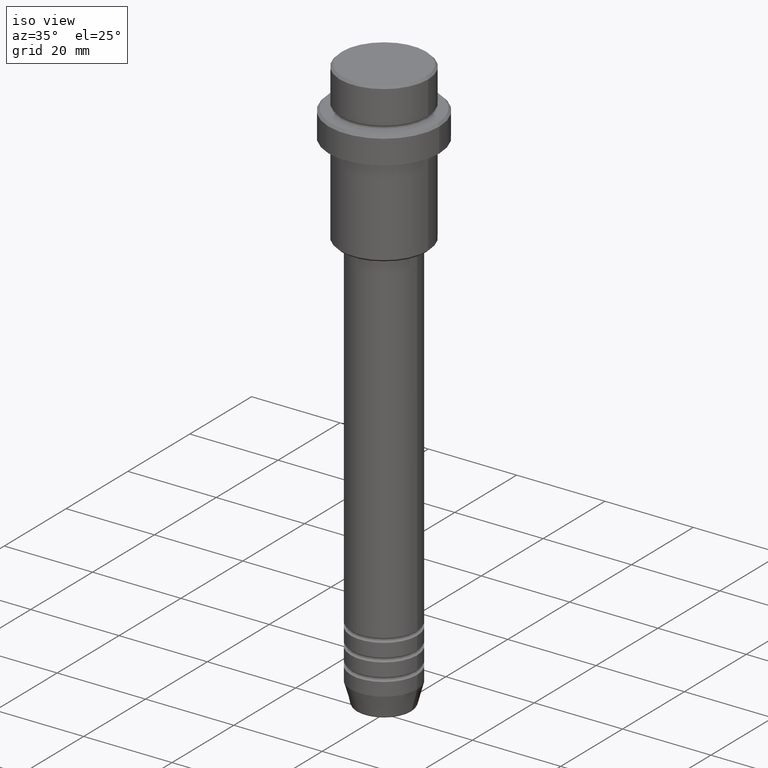
[diagram: clean part render]
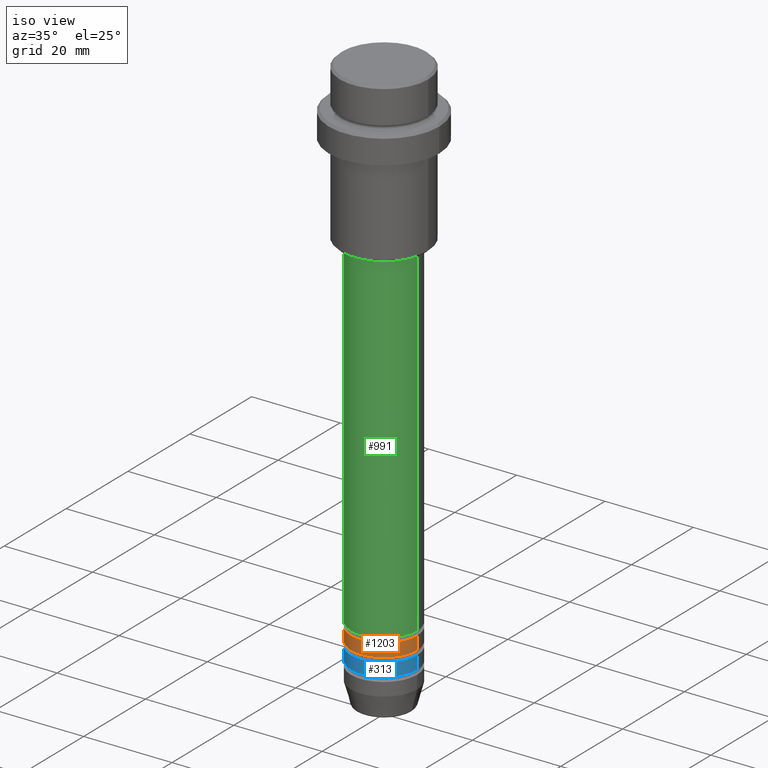
[diagram: same view with three faces highlighted in distinct colors, each labeled with its STEP entity id]
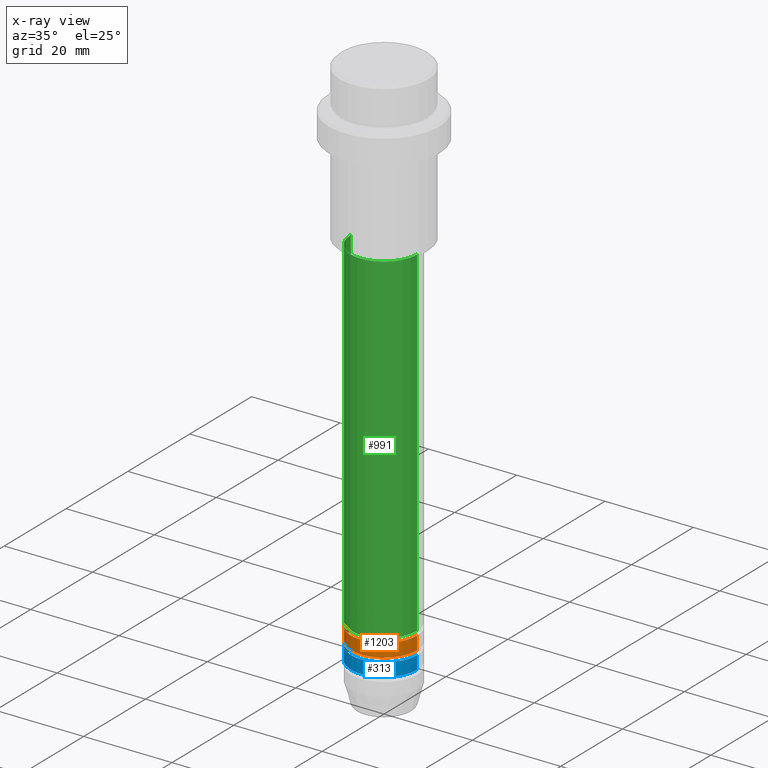
[diagram: x-ray of the same camera — body ghosted, the three highlighted faces saturated]
A machine part, iso view with three faces highlighted in distinct colors.
The next image is the same camera in x-ray (body ghosted, the three faces saturated) — at least one of them is partly hidden behind the body in this view.
Their STEP definitions:

[orange] entity #1203 — the highlighted cylindrical surface (partial cylindrical patch) has radius 7.5 mm, axis along (-0, -0, 1).
#65 = EDGE_CURVE ( 'NONE', #1031, #251, #719, .T. ) ;
#85 = CARTESIAN_POINT ( 'NONE',  ( 7.500000000000000000, 0.000000000000000000, -114.9999999999998863 ) ) ;
#112 = CARTESIAN_POINT ( 'NONE',  ( 7.500000000000000000, 0.000000000000000000, 0.000000000000000000 ) ) ;
#158 = DIRECTION ( 'NONE',  ( -0.000000000000000000, -0.000000000000000000, 1.000000000000000000 ) ) ;
#212 = DIRECTION ( 'NONE',  ( 1.000000000000000000, 0.000000000000000000, 0.000000000000000000 ) ) ;
#217 = EDGE_LOOP ( 'NONE', ( #484, #476, #322, #350 ) ) ;
#219 = DIRECTION ( 'NONE',  ( -0.000000000000000000, -0.000000000000000000, 1.000000000000000000 ) ) ;
#224 = CARTESIAN_POINT ( 'NONE',  ( -7.500000000000000000, 9.184850993605147944E-16, -117.9999999999998863 ) ) ;
#251 = VERTEX_POINT ( 'NONE', #518 ) ;
#279 = EDGE_CURVE ( 'NONE', #251, #1358, #630, .T. ) ;
#292 = EDGE_CURVE ( 'NONE', #1031, #845, #837, .T. ) ;
#305 = AXIS2_PLACEMENT_3D ( 'NONE', #542, #352, #212 ) ;
#322 = ORIENTED_EDGE ( 'NONE', *, *, #364, .T. ) ;
#350 = ORIENTED_EDGE ( 'NONE', *, *, #279, .F. ) ;
#352 = DIRECTION ( 'NONE',  ( -0.000000000000000000, -0.000000000000000000, 1.000000000000000000 ) ) ;
#354 = VECTOR ( 'NONE', #830, 1000.000000000000000 ) ;
#364 = EDGE_CURVE ( 'NONE', #845, #1358, #1106, .T. ) ;
#365 = CARTESIAN_POINT ( 'NONE',  ( -7.500000000000000000, 9.184850993605147944E-16, 0.000000000000000000 ) ) ;
#377 = FACE_OUTER_BOUND ( 'NONE', #217, .T. ) ;
#476 = ORIENTED_EDGE ( 'NONE', *, *, #292, .T. ) ;
#484 = ORIENTED_EDGE ( 'NONE', *, *, #65, .F. ) ;
#518 = CARTESIAN_POINT ( 'NONE',  ( -7.500000000000000000, 9.184850993605147944E-16, -114.9999999999998863 ) ) ;
#542 = CARTESIAN_POINT ( 'NONE',  ( 0.000000000000000000, 0.000000000000000000, -114.9999999999998863 ) ) ;
#552 = DIRECTION ( 'NONE',  ( 1.000000000000000000, 0.000000000000000000, 0.000000000000000000 ) ) ;
#591 = CARTESIAN_POINT ( 'NONE',  ( 0.000000000000000000, 0.000000000000000000, 0.000000000000000000 ) ) ;
#630 = CIRCLE ( 'NONE', #305, 7.500000000000000000 ) ;
#652 = CARTESIAN_POINT ( 'NONE',  ( 0.000000000000000000, 0.000000000000000000, -117.9999999999998863 ) ) ;
#703 = AXIS2_PLACEMENT_3D ( 'NONE', #591, #158, #1150 ) ;
#719 = LINE ( 'NONE', #365, #354 ) ;
#777 = DIRECTION ( 'NONE',  ( -0.000000000000000000, -0.000000000000000000, 1.000000000000000000 ) ) ;
#803 = CYLINDRICAL_SURFACE ( 'NONE', #703, 7.500000000000000000 ) ;
#830 = DIRECTION ( 'NONE',  ( -0.000000000000000000, -0.000000000000000000, 1.000000000000000000 ) ) ;
#837 = CIRCLE ( 'NONE', #1215, 7.500000000000000000 ) ;
#845 = VERTEX_POINT ( 'NONE', #978 ) ;
#978 = CARTESIAN_POINT ( 'NONE',  ( 7.500000000000000000, 0.000000000000000000, -117.9999999999998863 ) ) ;
#1031 = VERTEX_POINT ( 'NONE', #224 ) ;
#1106 = LINE ( 'NONE', #112, #1194 ) ;
#1150 = DIRECTION ( 'NONE',  ( 1.000000000000000000, 0.000000000000000000, 0.000000000000000000 ) ) ;
#1194 = VECTOR ( 'NONE', #777, 1000.000000000000000 ) ;
#1203 = ADVANCED_FACE ( 'NONE', ( #377 ), #803, .T. ) ;
#1215 = AXIS2_PLACEMENT_3D ( 'NONE', #652, #219, #552 ) ;
#1358 = VERTEX_POINT ( 'NONE', #85 ) ;

[blue] entity #313 — the highlighted cylindrical surface (partial cylindrical patch) has radius 7.5 mm, axis along (-0, -0, 1).
#129 = CARTESIAN_POINT ( 'NONE',  ( -7.500000000000000000, 9.184850993605147944E-16, 0.000000000000000000 ) ) ;
#231 = EDGE_LOOP ( 'NONE', ( #601, #435, #348, #342 ) ) ;
#257 = VERTEX_POINT ( 'NONE', #444 ) ;
#265 = LINE ( 'NONE', #129, #446 ) ;
#299 = CARTESIAN_POINT ( 'NONE',  ( -7.500000000000000000, 9.184850993605147944E-16, -121.9999999999998579 ) ) ;
#306 = EDGE_CURVE ( 'NONE', #257, #1045, #1104, .T. ) ;
#313 = ADVANCED_FACE ( 'NONE', ( #1315 ), #327, .T. ) ;
#327 = CYLINDRICAL_SURFACE ( 'NONE', #1260, 7.500000000000000000 ) ;
#342 = ORIENTED_EDGE ( 'NONE', *, *, #306, .F. ) ;
#346 = DIRECTION ( 'NONE',  ( -0.000000000000000000, -0.000000000000000000, 1.000000000000000000 ) ) ;
#348 = ORIENTED_EDGE ( 'NONE', *, *, #757, .T. ) ;
#355 = CARTESIAN_POINT ( 'NONE',  ( 7.500000000000000000, 0.000000000000000000, -118.9999999999998863 ) ) ;
#356 = AXIS2_PLACEMENT_3D ( 'NONE', #774, #884, #681 ) ;
#358 = CIRCLE ( 'NONE', #1395, 7.500000000000000000 ) ;
#435 = ORIENTED_EDGE ( 'NONE', *, *, #900, .T. ) ;
#444 = CARTESIAN_POINT ( 'NONE',  ( -7.500000000000000000, 9.184850993605147944E-16, -118.9999999999998863 ) ) ;
#446 = VECTOR ( 'NONE', #714, 1000.000000000000000 ) ;
#483 = LINE ( 'NONE', #754, #1416 ) ;
#534 = EDGE_CURVE ( 'NONE', #574, #257, #265, .T. ) ;
#574 = VERTEX_POINT ( 'NONE', #299 ) ;
#601 = ORIENTED_EDGE ( 'NONE', *, *, #534, .F. ) ;
#602 = DIRECTION ( 'NONE',  ( -0.000000000000000000, -0.000000000000000000, 1.000000000000000000 ) ) ;
#681 = DIRECTION ( 'NONE',  ( 1.000000000000000000, 0.000000000000000000, 0.000000000000000000 ) ) ;
#714 = DIRECTION ( 'NONE',  ( -0.000000000000000000, -0.000000000000000000, 1.000000000000000000 ) ) ;
#754 = CARTESIAN_POINT ( 'NONE',  ( 7.500000000000000000, 0.000000000000000000, 0.000000000000000000 ) ) ;
#757 = EDGE_CURVE ( 'NONE', #1369, #1045, #483, .T. ) ;
#766 = CARTESIAN_POINT ( 'NONE',  ( 0.000000000000000000, 0.000000000000000000, 0.000000000000000000 ) ) ;
#774 = CARTESIAN_POINT ( 'NONE',  ( 0.000000000000000000, 0.000000000000000000, -118.9999999999998863 ) ) ;
#862 = DIRECTION ( 'NONE',  ( -0.000000000000000000, -0.000000000000000000, 1.000000000000000000 ) ) ;
#884 = DIRECTION ( 'NONE',  ( -0.000000000000000000, -0.000000000000000000, 1.000000000000000000 ) ) ;
#900 = EDGE_CURVE ( 'NONE', #574, #1369, #358, .T. ) ;
#958 = CARTESIAN_POINT ( 'NONE',  ( 7.500000000000000000, 0.000000000000000000, -121.9999999999998579 ) ) ;
#1027 = CARTESIAN_POINT ( 'NONE',  ( 0.000000000000000000, 0.000000000000000000, -121.9999999999998579 ) ) ;
#1045 = VERTEX_POINT ( 'NONE', #355 ) ;
#1088 = DIRECTION ( 'NONE',  ( 1.000000000000000000, 0.000000000000000000, 0.000000000000000000 ) ) ;
#1104 = CIRCLE ( 'NONE', #356, 7.500000000000000000 ) ;
#1145 = DIRECTION ( 'NONE',  ( 1.000000000000000000, 0.000000000000000000, 0.000000000000000000 ) ) ;
#1260 = AXIS2_PLACEMENT_3D ( 'NONE', #766, #346, #1088 ) ;
#1315 = FACE_OUTER_BOUND ( 'NONE', #231, .T. ) ;
#1369 = VERTEX_POINT ( 'NONE', #958 ) ;
#1395 = AXIS2_PLACEMENT_3D ( 'NONE', #1027, #602, #1145 ) ;
#1416 = VECTOR ( 'NONE', #862, 1000.000000000000000 ) ;

[green] entity #991 — the highlighted cylindrical surface (partial cylindrical patch) has radius 7.5 mm, axis along (-0, -0, 1).
#90 = CARTESIAN_POINT ( 'NONE',  ( -7.500000000000000000, 9.184850993605147944E-16, -113.9999999999998863 ) ) ;
#110 = VERTEX_POINT ( 'NONE', #90 ) ;
#152 = AXIS2_PLACEMENT_3D ( 'NONE', #833, #256, #734 ) ;
#179 = VERTEX_POINT ( 'NONE', #202 ) ;
#202 = CARTESIAN_POINT ( 'NONE',  ( 7.500000000000000000, 0.000000000000000000, -36.99999999999997158 ) ) ;
#227 = VERTEX_POINT ( 'NONE', #835 ) ;
#256 = DIRECTION ( 'NONE',  ( -0.000000000000000000, -0.000000000000000000, 1.000000000000000000 ) ) ;
#285 = VECTOR ( 'NONE', #401, 1000.000000000000000 ) ;
#334 = EDGE_CURVE ( 'NONE', #1219, #179, #728, .T. ) ;
#353 = EDGE_CURVE ( 'NONE', #227, #179, #665, .T. ) ;
#401 = DIRECTION ( 'NONE',  ( -0.000000000000000000, -0.000000000000000000, 1.000000000000000000 ) ) ;
#415 = CARTESIAN_POINT ( 'NONE',  ( 0.000000000000000000, 0.000000000000000000, 0.000000000000000000 ) ) ;
#632 = LINE ( 'NONE', #1053, #285 ) ;
#646 = EDGE_CURVE ( 'NONE', #110, #1219, #632, .T. ) ;
#665 = LINE ( 'NONE', #1098, #1324 ) ;
#694 = ORIENTED_EDGE ( 'NONE', *, *, #353, .T. ) ;
#728 = CIRCLE ( 'NONE', #1009, 7.500000000000000000 ) ;
#734 = DIRECTION ( 'NONE',  ( 1.000000000000000000, 0.000000000000000000, 0.000000000000000000 ) ) ;
#768 = CIRCLE ( 'NONE', #152, 7.500000000000000000 ) ;
#810 = CARTESIAN_POINT ( 'NONE',  ( -7.500000000000000000, 9.184850993605147944E-16, -36.99999999999997158 ) ) ;
#833 = CARTESIAN_POINT ( 'NONE',  ( 0.000000000000000000, 0.000000000000000000, -113.9999999999998863 ) ) ;
#835 = CARTESIAN_POINT ( 'NONE',  ( 7.500000000000000000, 0.000000000000000000, -113.9999999999998863 ) ) ;
#846 = DIRECTION ( 'NONE',  ( 1.000000000000000000, 0.000000000000000000, 0.000000000000000000 ) ) ;
#950 = DIRECTION ( 'NONE',  ( -0.000000000000000000, -0.000000000000000000, 1.000000000000000000 ) ) ;
#991 = ADVANCED_FACE ( 'NONE', ( #1271 ), #1381, .T. ) ;
#992 = EDGE_LOOP ( 'NONE', ( #1230, #1146, #694, #1004 ) ) ;
#1004 = ORIENTED_EDGE ( 'NONE', *, *, #334, .F. ) ;
#1009 = AXIS2_PLACEMENT_3D ( 'NONE', #1201, #1204, #1293 ) ;
#1053 = CARTESIAN_POINT ( 'NONE',  ( -7.500000000000000000, 9.184850993605147944E-16, 0.000000000000000000 ) ) ;
#1084 = AXIS2_PLACEMENT_3D ( 'NONE', #415, #950, #846 ) ;
#1098 = CARTESIAN_POINT ( 'NONE',  ( 7.500000000000000000, 0.000000000000000000, 0.000000000000000000 ) ) ;
#1146 = ORIENTED_EDGE ( 'NONE', *, *, #1247, .T. ) ;
#1201 = CARTESIAN_POINT ( 'NONE',  ( 0.000000000000000000, 0.000000000000000000, -36.99999999999997158 ) ) ;
#1204 = DIRECTION ( 'NONE',  ( -0.000000000000000000, -0.000000000000000000, 1.000000000000000000 ) ) ;
#1219 = VERTEX_POINT ( 'NONE', #810 ) ;
#1230 = ORIENTED_EDGE ( 'NONE', *, *, #646, .F. ) ;
#1247 = EDGE_CURVE ( 'NONE', #110, #227, #768, .T. ) ;
#1271 = FACE_OUTER_BOUND ( 'NONE', #992, .T. ) ;
#1293 = DIRECTION ( 'NONE',  ( 1.000000000000000000, 0.000000000000000000, 0.000000000000000000 ) ) ;
#1324 = VECTOR ( 'NONE', #1409, 1000.000000000000000 ) ;
#1381 = CYLINDRICAL_SURFACE ( 'NONE', #1084, 7.500000000000000000 ) ;
#1409 = DIRECTION ( 'NONE',  ( -0.000000000000000000, -0.000000000000000000, 1.000000000000000000 ) ) ;